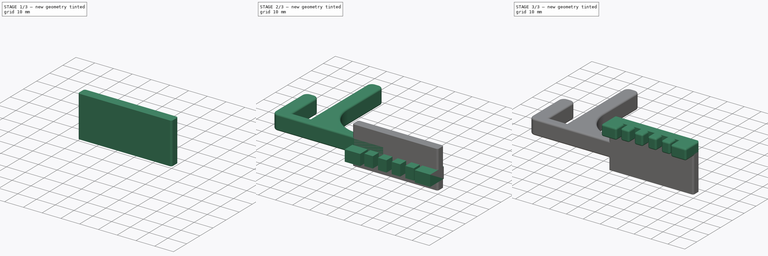
[diagram: build sequence overview — one tinted view per stage of 3, left to right]
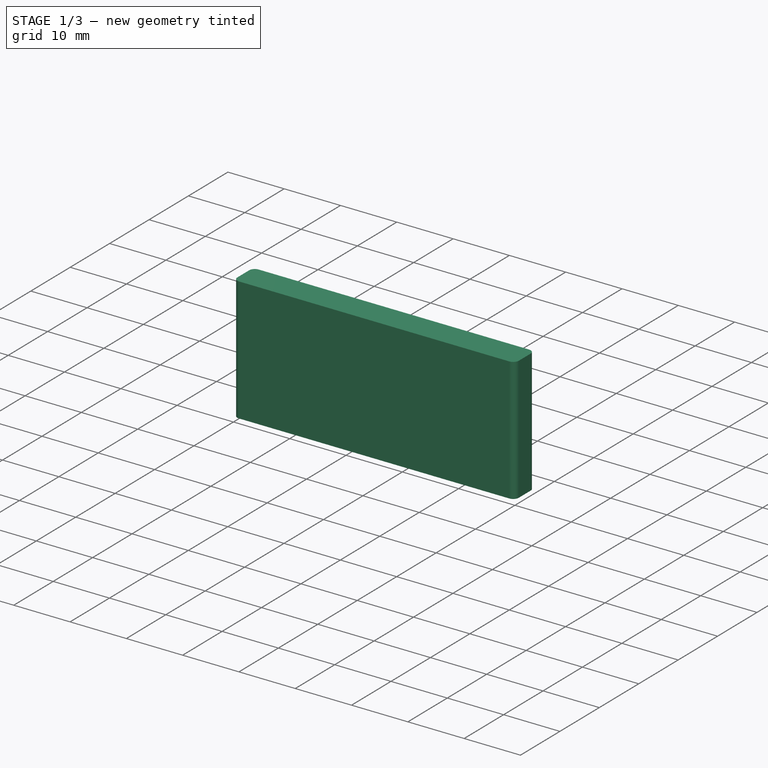
[diagram: stage 1 of 3 — iso view after this stage's code; geometry added in this stage tinted green]
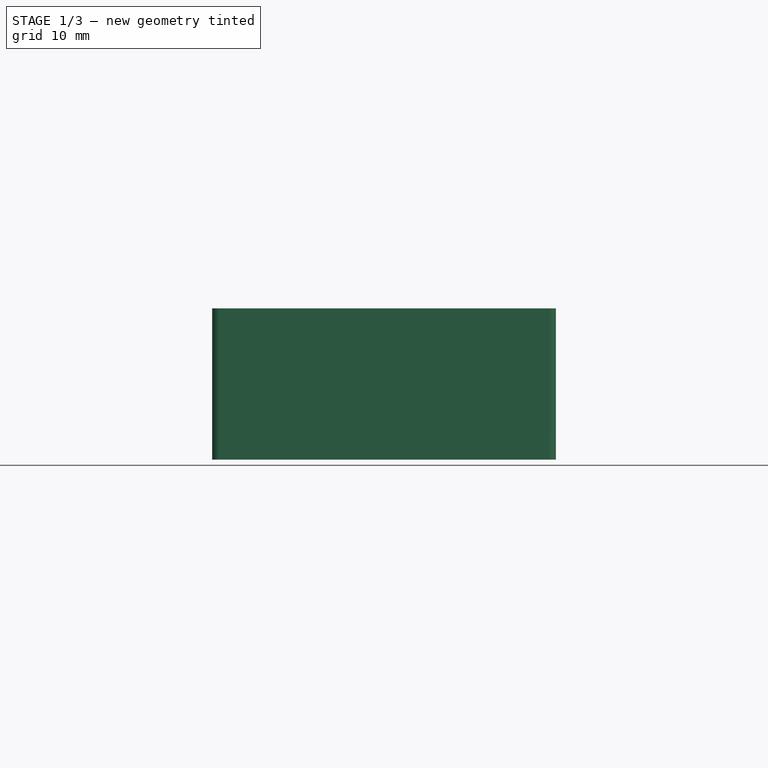
[diagram: stage 1 of 3 — front view after this stage's code; geometry added in this stage tinted green]
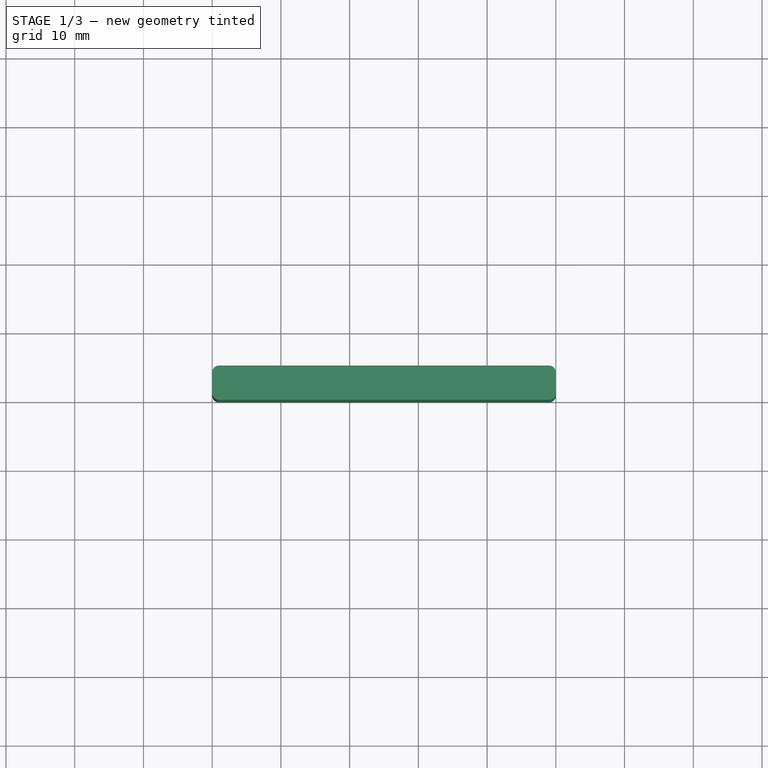
[diagram: stage 1 of 3 — top view after this stage's code; geometry added in this stage tinted green]
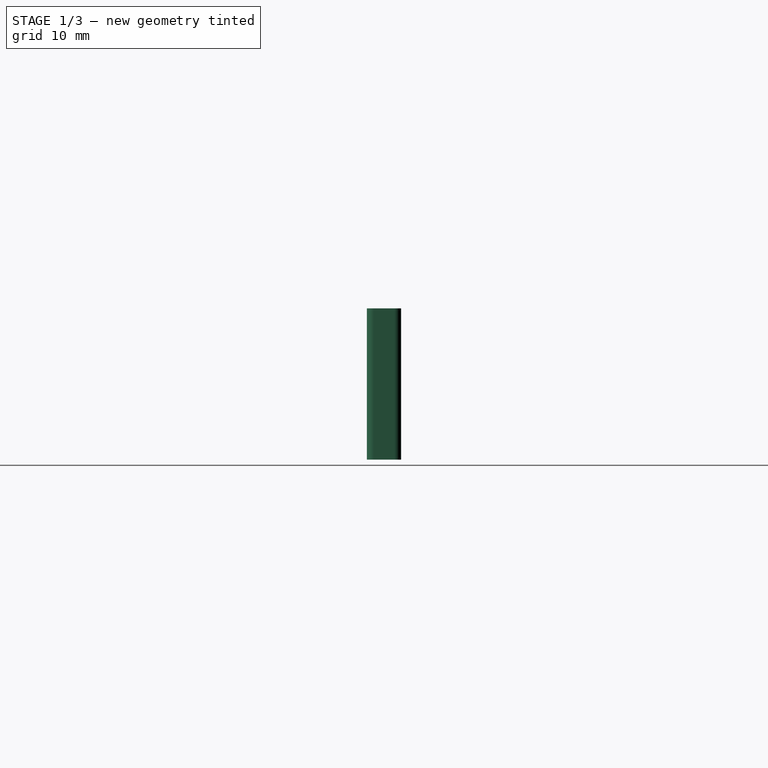
[diagram: stage 1 of 3 — right view after this stage's code; geometry added in this stage tinted green]
FCSTD DOCUMENT  (FreeCAD 0.20R29177 +426 (Git))
Label: LegoBracket2
License: All rights reserved
LicenseURL: http://en.wikipedia.org/wiki/All_rights_reserved
objects: Sketcher::SketchObject×3, PartDesign::Pad×3, PartDesign::Fillet×3, PartDesign::Body×3, Part::FeaturePython×1, App::Part×1
note: 19 computed .brp shape members not serialized (recipe doc carries the construction recipe); baked Part::Feature solids carry a one-line shape summary decoded from their .brp

FEATURE [PartDesign::Body] Body002  label="Body003"
  Group = -> [Sketch002,Pad002,Fillet001]
  Origin = -> Origin003
  Tip = -> Fillet001
FEATURE [Sketcher::SketchObject] Sketch003
  FullyConstrained = true
  MapMode = 5
  Support = -> [XY_Plane]
  sketch-geometry (4):
    g0: LineSegment StartX=0 StartY=0 StartZ=0 EndX=50 EndY=0 EndZ=0
    g1: LineSegment StartX=50 StartY=0 StartZ=0 EndX=50 EndY=5 EndZ=0
    g2: LineSegment StartX=50 StartY=5 StartZ=0 EndX=0 EndY=5 EndZ=0
    g3: LineSegment StartX=0 StartY=5 StartZ=0 EndX=0 EndY=0 EndZ=0
  constraints (11):
    c: Coincident(g0,g1)
    c: Coincident(g1,g2)
    c: Coincident(g2,g3)
    c: Coincident(g3,g0)
    c: Horizontal(g0)
    c: Horizontal(g2)
    c: Vertical(g1)
    c: Vertical(g3)
    c: Coincident(g0,g-1)
    c: DistanceY(g1,g1) = 5
    c: DistanceX(g2,g2) = 50
FEATURE [PartDesign::Pad] Pad003
  Direction = (0,0,1)
  Length = 22
  Length2 = 10
  Midplane = true
  Profile = -> Sketch003
  ReferenceAxis = -> Sketch003 [N_Axis]
  Type = 0
FEATURE [PartDesign::Fillet] Fillet002
  Base = -> Pad003 [Edge2,Edge5,Edge1,Edge8]
  BaseFeature = -> Pad003
  Radius = 1
  SupportTransform = false
  UseAllEdges = false
FEATURE [PartDesign::Body] Body003  label="Body004"
  Group = -> [Sketch003,Pad003,Fillet002]
  Origin = -> Origin
  Tip = -> Fillet002
FEATURE [App::Part] Part
  Group = -> [Clone,Body,Body002,Body003]
  Origin = -> Origin002
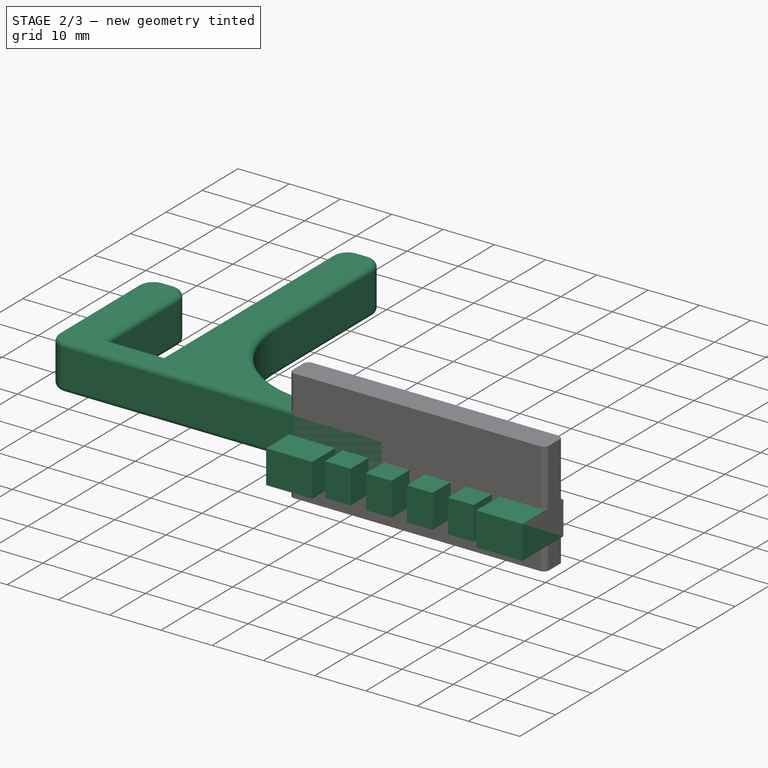
[diagram: stage 2 of 3 — iso view after this stage's code; geometry added in this stage tinted green]
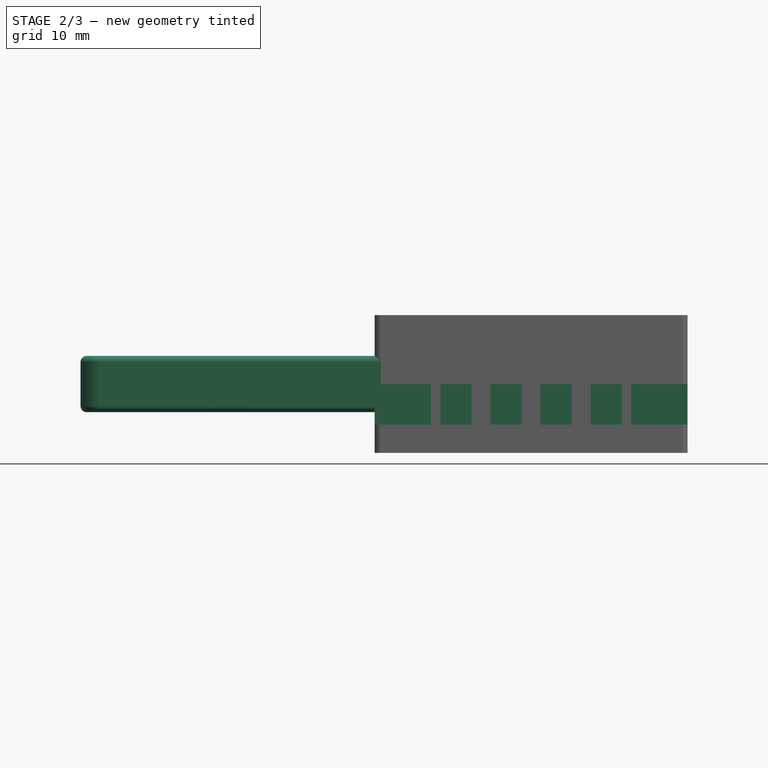
[diagram: stage 2 of 3 — front view after this stage's code; geometry added in this stage tinted green]
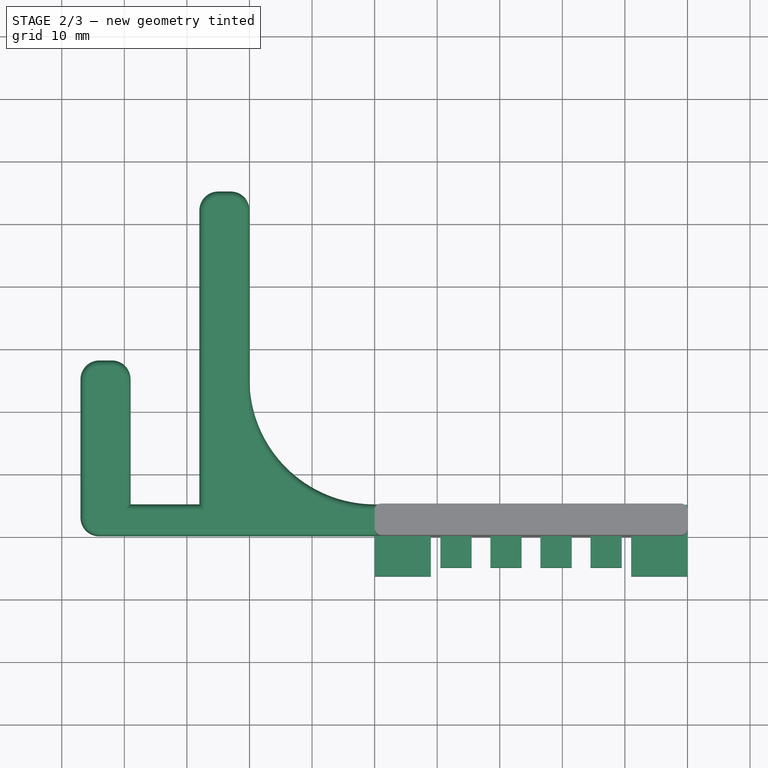
[diagram: stage 2 of 3 — top view after this stage's code; geometry added in this stage tinted green]
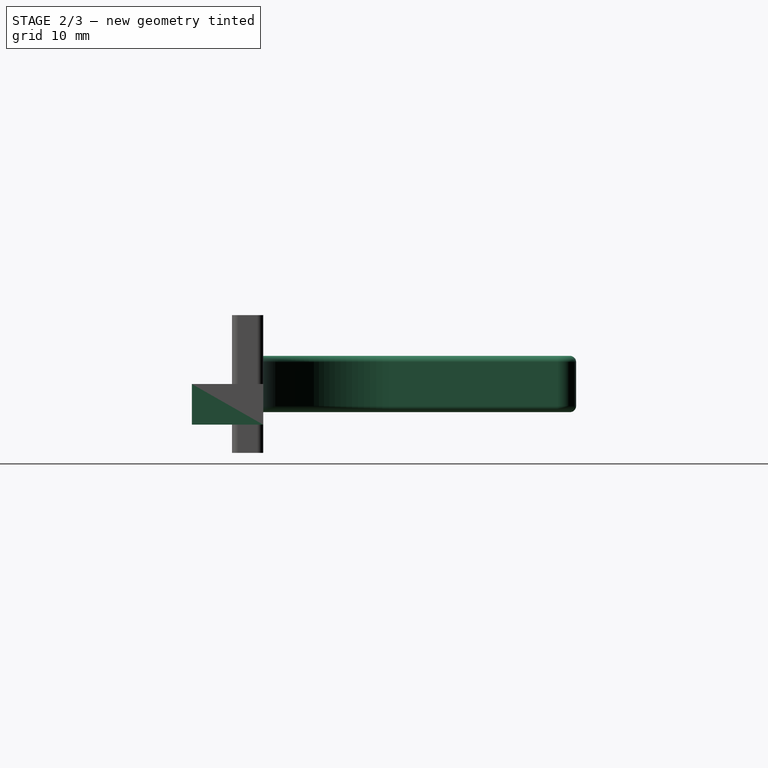
[diagram: stage 2 of 3 — right view after this stage's code; geometry added in this stage tinted green]
FEATURE [Sketcher::SketchObject] Sketch
  FullyConstrained = true
  MapMode = 3
  Placement = pos=(0,0,0) rot=(1,0,0;3.14159rad)
  Support = -> [XZ_Plane001]
  sketch-geometry (24):
    g0: LineSegment StartX=0 StartY=6.4 StartZ=0 EndX=9 EndY=6.4 EndZ=0
    g1: LineSegment StartX=9 StartY=6.4 StartZ=0 EndX=9 EndY=0 EndZ=0
    g2: LineSegment StartX=9 StartY=0 StartZ=0 EndX=10.5 EndY=0 EndZ=0
    g3: LineSegment StartX=10.5 StartY=0 StartZ=0 EndX=10.5 EndY=5 EndZ=0
    g4: LineSegment StartX=10.5 StartY=5 StartZ=0 EndX=15.5 EndY=5 EndZ=0
    g5: LineSegment StartX=15.5 StartY=5 StartZ=0 EndX=15.5 EndY=0 EndZ=0
    g6: LineSegment StartX=15.5 StartY=0 StartZ=0 EndX=18.5 EndY=0 EndZ=0
    g7: LineSegment StartX=18.5 StartY=0 StartZ=0 EndX=18.5 EndY=5 EndZ=0
    g8: LineSegment StartX=18.5 StartY=5 StartZ=0 EndX=23.5 EndY=5 EndZ=0
    g9: LineSegment StartX=23.5 StartY=5 StartZ=0 EndX=23.5 EndY=0 EndZ=0
    g10: LineSegment StartX=23.5 StartY=0 StartZ=0 EndX=26.5 EndY=0 EndZ=0
    g11: LineSegment StartX=26.5 StartY=0 StartZ=0 EndX=26.5 EndY=5 EndZ=0
    g12: LineSegment StartX=26.5 StartY=5 StartZ=0 EndX=31.5 EndY=5 EndZ=0
    g13: LineSegment StartX=31.5 StartY=5 StartZ=0 EndX=31.5 EndY=0 EndZ=0
    g14: LineSegment StartX=31.5 StartY=0 StartZ=0 EndX=34.5 EndY=0 EndZ=0
    g15: LineSegment StartX=34.5 StartY=0 StartZ=0 EndX=34.5 EndY=5 EndZ=0
    g16: LineSegment StartX=34.5 StartY=5 StartZ=0 EndX=39.5 EndY=5 EndZ=0
    g17: LineSegment StartX=39.5 StartY=5 StartZ=0 EndX=39.5 EndY=0 EndZ=0
    g18: LineSegment StartX=39.5 StartY=0 StartZ=0 EndX=41 EndY=0 EndZ=0
    g19: LineSegment StartX=41 StartY=0 StartZ=0 EndX=41 EndY=6.4 EndZ=0
    g20: LineSegment StartX=41 StartY=6.4 StartZ=0 EndX=50 EndY=6.4 EndZ=0
    g21: LineSegment StartX=50 StartY=6.4 StartZ=0 EndX=50 EndY=-5 EndZ=0
    g22: LineSegment StartX=50 StartY=-5 StartZ=0 EndX=0 EndY=-5 EndZ=0
    g23: LineSegment StartX=0 StartY=-5 StartZ=0 EndX=0 EndY=6.4 EndZ=0
  constraints (72):
    c: Coincident(g0,g1)
    c: Vertical(g1)
    c: Coincident(g1,g2)
    c: Horizontal(g2)
    c: Coincident(g2,g3)
    c: Coincident(g3,g4)
    c: Horizontal(g4)
    c: Coincident(g4,g5)
    c: Vertical(g5)
    c: Coincident(g5,g6)
    c: Horizontal(g6)
    c: Coincident(g6,g7)
    c: Vertical(g7)
    c: Coincident(g7,g8)
    c: Horizontal(g8)
    c: Coincident(g8,g9)
    c: Vertical(g9)
    c: Coincident(g9,g10)
    c: Horizontal(g10)
    c: Coincident(g10,g11)
    c: Vertical(g11)
    c: Coincident(g11,g12)
    c: Horizontal(g12)
    c: Coincident(g12,g13)
    c: Vertical(g13)
    c: Coincident(g13,g14)
    c: Coincident(g14,g15)
    c: Vertical(g15)
    c: Coincident(g15,g16)
    c: Horizontal(g16)
    c: Coincident(g16,g17)
    c: Coincident(g17,g18)
    c: Horizontal(g18)
    c: Coincident(g18,g19)
    c: Vertical(g19)
    c: Coincident(g19,g20)
    c: Coincident(g20,g21)
    c: Vertical(g21)
    c: Coincident(g21,g22)
    c: PointOnObject(g22,g-2)
    c: Horizontal(g22)
    c: Coincident(g22,g23)
    c: Coincident(g23,g0)
    c: Vertical(g3)
    c: Horizontal(g4,g7)
    c: Horizontal(g8,g11)
    c: Horizontal(g12,g15)
    c: Vertical(g17)
    c: Horizontal(g2,g5)
    c: Horizontal(g6,g9)
    c: Horizontal(g10,g13)
    c: Horizontal(g14,g17)
    c: Horizontal(g14)
    c: Horizontal(g0,g19)
    c: Horizontal(g20)
    c: Horizontal(g0)
    c: Vertical(g23)
    c: Equal(g4,g8)
    c: Equal(g8,g12)
    c: Equal(g12,g16)
    c: Equal(g6,g10)
    c: Equal(g10,g14)
    c: Equal(g2,g18)
    c: Equal(g0,g20)
    c: DistanceX(g6,g6) = 3
    c: DistanceX(g4,g4) = 5
    c: DistanceX(g2,g2) = 1.5
    c: DistanceX(g0,g0) = 9
    c: DistanceY(g3,g3) = 5
    c: DistanceY(g19,g19) = 6.4
    c: PointOnObject(g1,g-1)
    c: DistanceY(g22,g1) = 5
FEATURE [PartDesign::Pad] Pad
  Direction = (0,0,-1)
  Length = 6.5
  Length2 = 10
  Placement = pos=(0,0,0) rot=(1,0,0;1.5708rad)
  Profile = -> Sketch
  ReferenceAxis = -> Sketch [N_Axis]
  Type = 0
FEATURE [Sketcher::SketchObject] Sketch002
  FullyConstrained = true
  MapMode = 5
  Support = -> [XY_Plane003]
  sketch-geometry (21):
    g0: LineSegment StartX=-47 StartY=3 StartZ=0 EndX=-47 EndY=25 EndZ=0
    g1: LineSegment StartX=-44 StartY=28 StartZ=0 EndX=-42 EndY=28 EndZ=0
    g2: LineSegment StartX=-39 StartY=25 StartZ=0 EndX=-39 EndY=5 EndZ=0
    g3: LineSegment StartX=-39 StartY=5 StartZ=0 EndX=-28 EndY=5 EndZ=0
    g4: LineSegment StartX=-28 StartY=5 StartZ=0 EndX=-28 EndY=52 EndZ=0
    g5: LineSegment StartX=-25 StartY=55 StartZ=0 EndX=-23 EndY=55 EndZ=0
    g6: LineSegment StartX=-20 StartY=52 StartZ=0 EndX=-20 EndY=25 EndZ=0
    g7: LineSegment StartX=-1.03e-14 StartY=5 StartZ=0 EndX=18 EndY=5 EndZ=0
    g8: LineSegment StartX=18 StartY=5 StartZ=0 EndX=18 EndY=0 EndZ=0
    g9: LineSegment StartX=18 StartY=0 StartZ=0 EndX=-44 EndY=0 EndZ=0
    g10: ArcOfCircle CenterX=-6.6e-15 CenterY=25 CenterZ=0 NormalX=0 NormalY=0 NormalZ=1 AngleXU=0 Radius=20 StartAngle=3.14159 EndAngle=4.71239
    g11: ArcOfCircle CenterX=-44 CenterY=3 CenterZ=0 NormalX=0 NormalY=0 NormalZ=1 AngleXU=0 Radius=3 StartAngle=3.14159 EndAngle=4.71239
    g12: GeomPoint X=-47 Y=0 Z=0
    g13: ArcOfCircle CenterX=-44 CenterY=25 CenterZ=0 NormalX=0 NormalY=0 NormalZ=1 AngleXU=0 Radius=3 StartAngle=1.5708 EndAngle=3.14159
    g14: GeomPoint X=-47 Y=28 Z=0
    g15: ArcOfCircle CenterX=-42 CenterY=25 CenterZ=0 NormalX=0 NormalY=0 NormalZ=1 AngleXU=0 Radius=3 StartAngle=0 EndAngle=1.5708
    g16: GeomPoint X=-39 Y=28 Z=0
    g17: ArcOfCircle CenterX=-25 CenterY=52 CenterZ=0 NormalX=0 NormalY=0 NormalZ=1 AngleXU=0 Radius=3 StartAngle=1.5708 EndAngle=3.14159
    g18: GeomPoint X=-28 Y=55 Z=0
    g19: ArcOfCircle CenterX=-23 CenterY=52 CenterZ=0 NormalX=0 NormalY=0 NormalZ=1 AngleXU=0 Radius=3 StartAngle=-9e-16 EndAngle=1.5708
    g20: GeomPoint X=-20 Y=55 Z=0
  constraints (52):
    c: Vertical(g0)
    c: Horizontal(g1)
    c: Vertical(g2)
    c: Coincident(g2,g3)
    c: Horizontal(g3)
    c: Coincident(g3,g4)
    c: Vertical(g4)
    c: Horizontal(g5)
    c: Vertical(g6)
    c: Horizontal(g7)
    c: Coincident(g7,g8)
    c: Coincident(g8,g9)
    c: Vertical(g8)
    c: Horizontal(g9)
    c: Tangent(g6,g10) = -1.5708
    c: Tangent(g7,g10) = -1.5708
    c: PointOnObject(g12,g-1)
    c: DistanceY(g8,g7) = 5
    c: DistanceX(g3,g3) = 11
    c: DistanceY(g2,g16) = 23
    c: DistanceY(g4,g18) = 50
    c: Radius(g10) = 20
    c: DistanceX(g18,g20) = 8
    c: DistanceX(g14,g16) = 8
    c: DistanceX(g3,g-1) = 28
    c: DistanceX(g-1,g7) = 18
    c: DistanceY(g12,g2) = 5
    c: PointOnObject(g12,g9)
    c: PointOnObject(g12,g0)
    c: Tangent(g9,g11) = 1.5708
    c: Tangent(g0,g11) = 1.5708
    c: PointOnObject(g14,g0)
    c: PointOnObject(g14,g1)
    c: Tangent(g0,g13) = 1.5708
    c: Tangent(g1,g13) = 1.5708
    c: PointOnObject(g16,g1)
    c: PointOnObject(g16,g2)
    c: Tangent(g1,g15) = 1.5708
    c: Tangent(g2,g15) = 1.5708
    c: PointOnObject(g18,g4)
    c: PointOnObject(g18,g5)
    c: Tangent(g4,g17) = 1.5708
    c: Tangent(g5,g17) = 1.5708
    c: PointOnObject(g20,g5)
    c: PointOnObject(g20,g6)
    c: Tangent(g5,g19) = 1.5708
    c: Tangent(g6,g19) = 1.5708
    c: Equal(g19,g17)
    c: Equal(g17,g15)
    c: Equal(g15,g13)
    c: Equal(g13,g11)
    c: Radius(g11) = 3
FEATURE [PartDesign::Pad] Pad002
  Direction = (0,0,1)
  Length = 9
  Length2 = 10
  Midplane = true
  Profile = -> Sketch002
  ReferenceAxis = -> Sketch002 [N_Axis]
  Type = 0
FEATURE [PartDesign::Fillet] Fillet001
  Base = -> Pad002 [Face17,Face18]
  BaseFeature = -> Pad002
  Radius = 1
  SupportTransform = false
  UseAllEdges = false
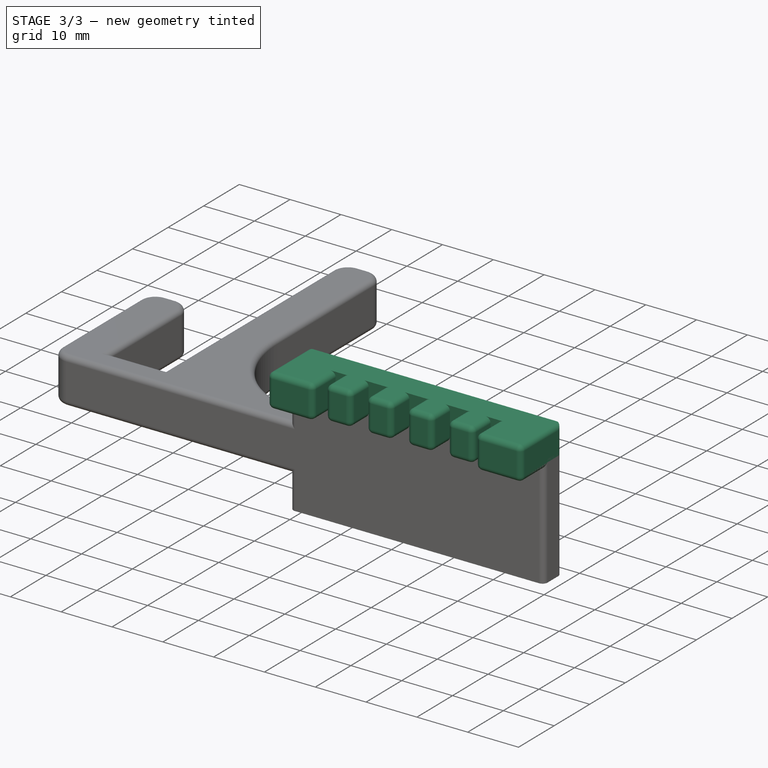
[diagram: stage 3 of 3 — iso view after this stage's code; geometry added in this stage tinted green]
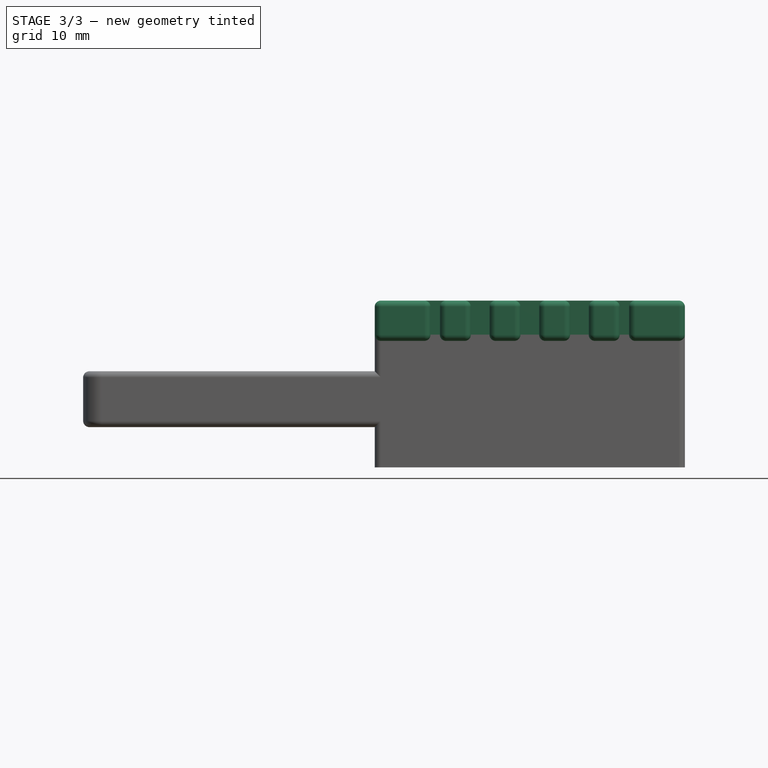
[diagram: stage 3 of 3 — front view after this stage's code; geometry added in this stage tinted green]
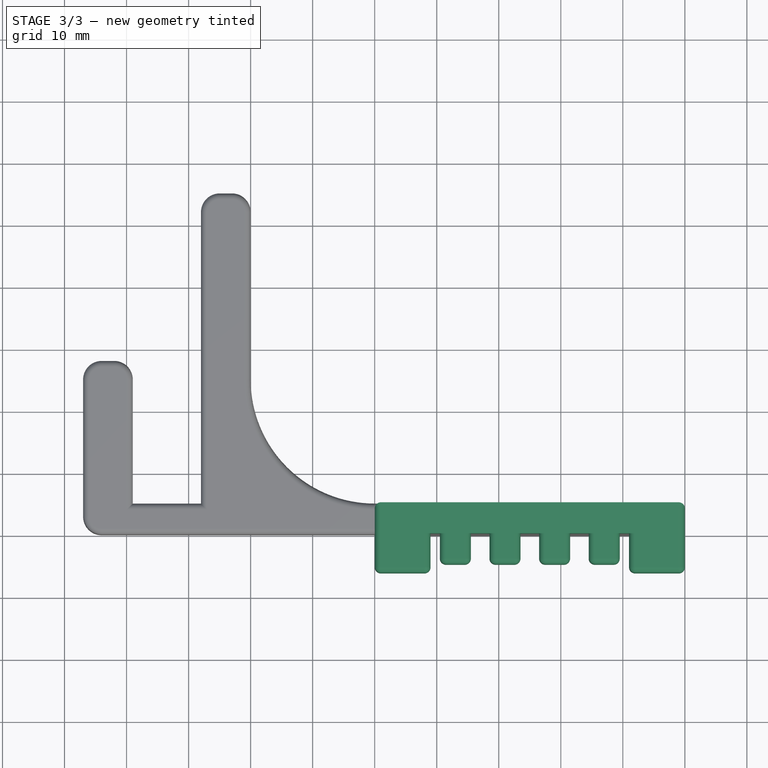
[diagram: stage 3 of 3 — top view after this stage's code; geometry added in this stage tinted green]
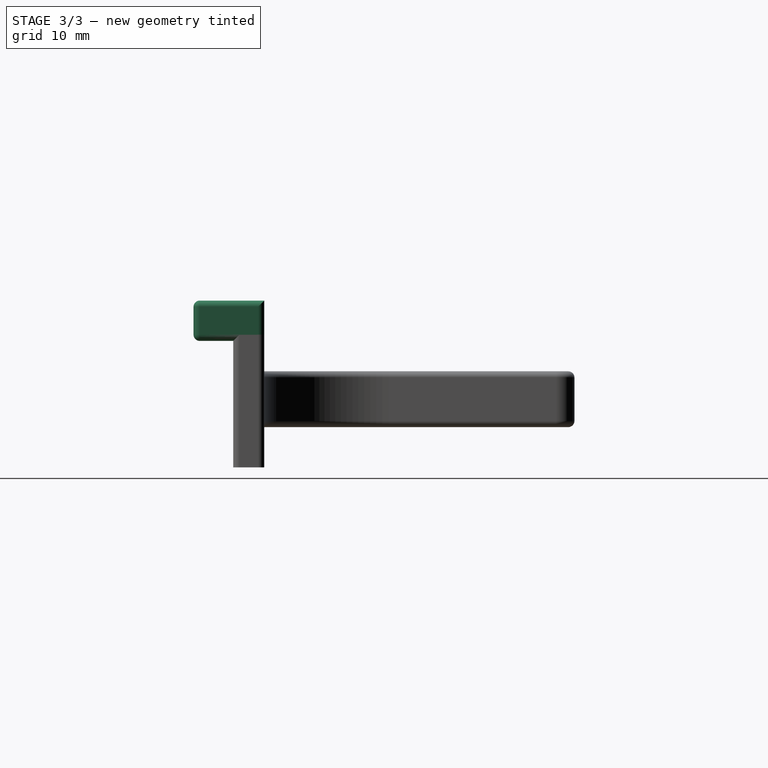
[diagram: stage 3 of 3 — right view after this stage's code; geometry added in this stage tinted green]
FEATURE [PartDesign::Fillet] Fillet
  Base = -> Pad [Face5,Face9,Face13,Face17,Edge18,Edge12,Edge24,Edge30,Edge36,Edge42,Edge48,Edge54,Edge55,Edge49,Edge43,Edge37,Edge31,Edge25,Edge19,Edge13,Edge65,Edge68,Face21,Face1,Edge6,Edge7,Edge71,Edge66,Edge67,Edge60,Edge61,Edge72,Edge70]
  BaseFeature = -> Pad
  Placement = pos=(0,0,0) rot=(1,0,0;1.5708rad)
  Radius = 1
  SupportTransform = false
  UseAllEdges = false
FEATURE [PartDesign::Body] Body
  Group = -> [Sketch,Pad,Fillet]
  Origin = -> Origin001
  Placement = pos=(0,0,-9.4) rot=(0,0,1;0rad)
  Tip = -> Fillet
FEATURE [Part::FeaturePython] Clone  label="Body001"  # Draft clone (typed FeaturePython)
  AttacherType = Attacher::AttachEngine3D
  Fuse = false
  Objects = -> [Body]
  Placement = pos=(0,0,15.9) rot=(0,0,1;0rad)
  Scale = (1,1,1)
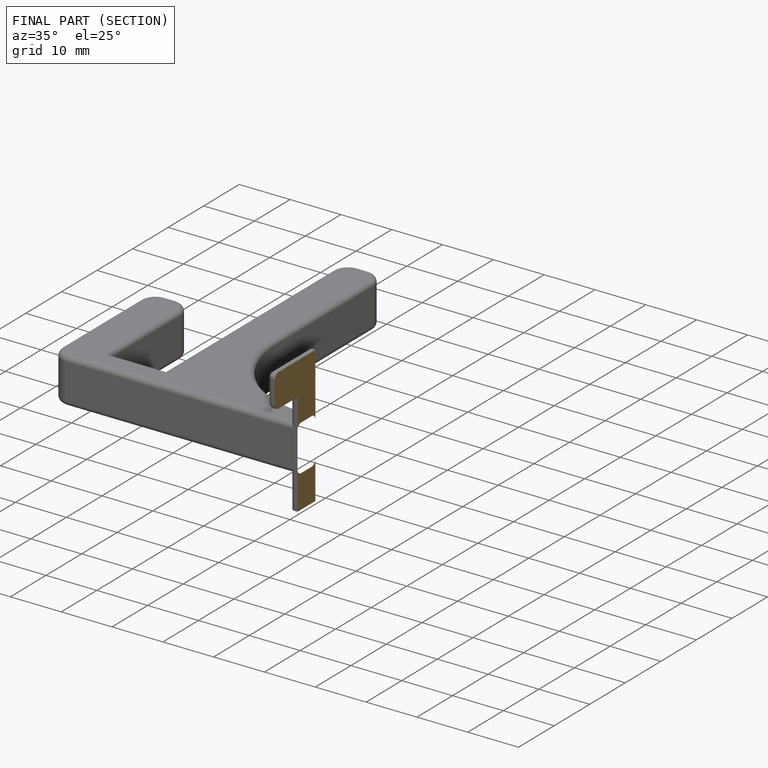
[diagram: finished part — half-section view (interior)]
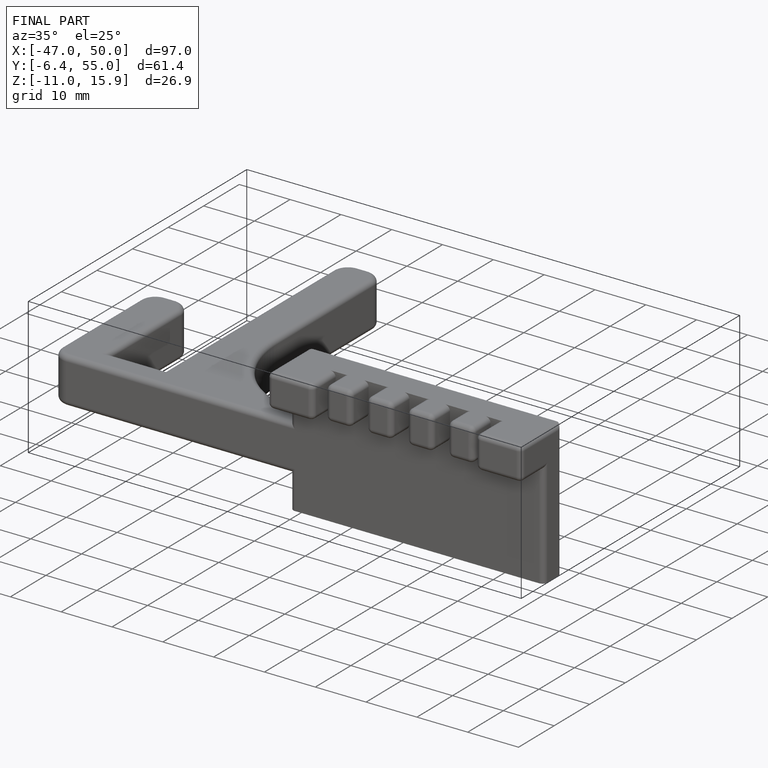
[diagram: finished part — iso view with bounding-box wireframe]
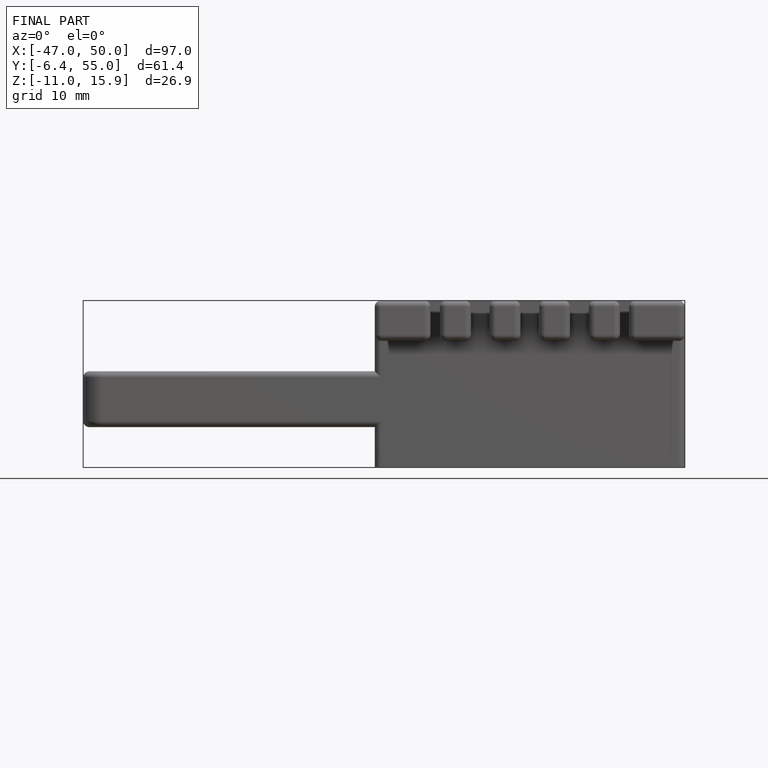
[diagram: finished part — front view with bounding-box wireframe]
